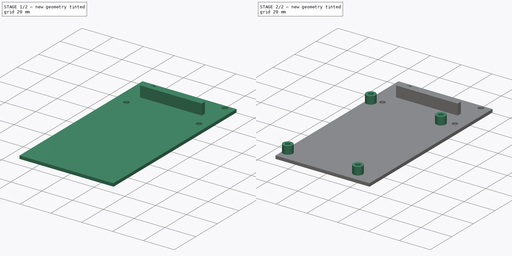
[diagram: build sequence overview — one tinted view per stage of 2, left to right]
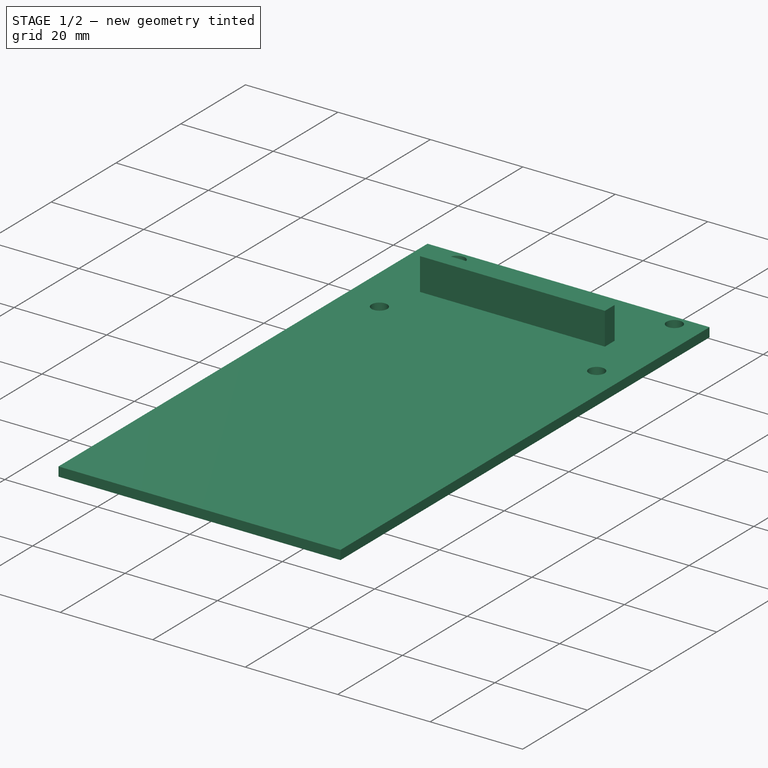
[diagram: stage 1 of 2 — iso view after this stage's code; geometry added in this stage tinted green]
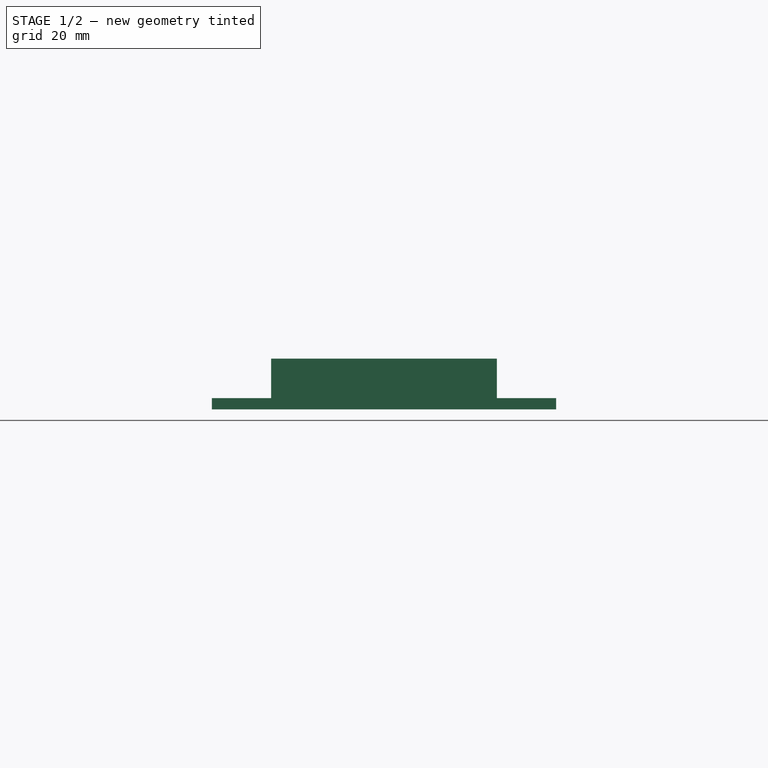
[diagram: stage 1 of 2 — front view after this stage's code; geometry added in this stage tinted green]
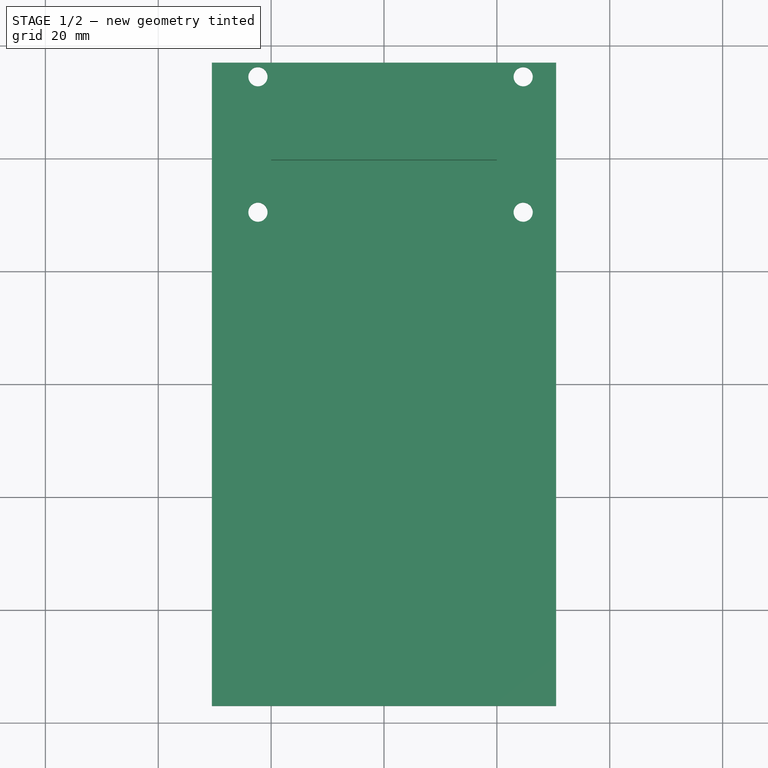
[diagram: stage 1 of 2 — top view after this stage's code; geometry added in this stage tinted green]
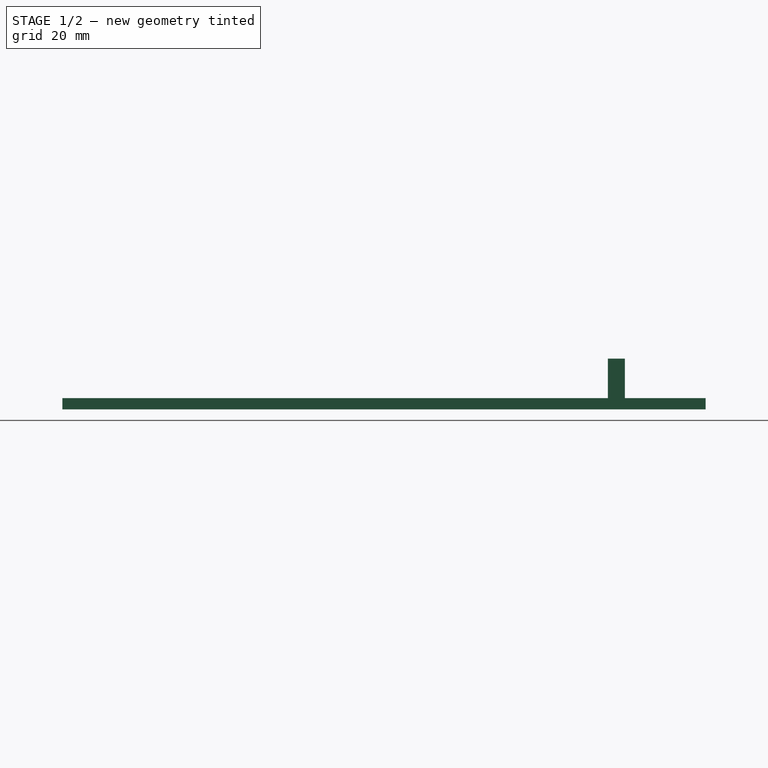
[diagram: stage 1 of 2 — right view after this stage's code; geometry added in this stage tinted green]
FCSTD DOCUMENT  (FreeCAD 0.18R16131 (Git))
Label: lid
License: All rights reserved
LicenseURL: http://en.wikipedia.org/wiki/All_rights_reserved
objects: Sketcher::SketchObject×3, PartDesign::Pad×2, Part::Extrusion×1, PartDesign::Body×1
note: 9 computed .brp shape members not serialized (recipe doc carries the construction recipe); baked Part::Feature solids carry a one-line shape summary decoded from their .brp

FEATURE [Sketcher::SketchObject] Sketch
  MapMode = 5
  Support = -> [XY_Plane]
  sketch-geometry (40):
    g0: LineSegment StartX=-30.5 StartY=57 StartZ=0 EndX=30.5 EndY=57 EndZ=0
    g1: LineSegment StartX=30.5 StartY=57 StartZ=0 EndX=30.5 EndY=-57 EndZ=0
    g2: LineSegment StartX=30.5 StartY=-57 StartZ=0 EndX=-30.5 EndY=-57 EndZ=0
    g3: LineSegment StartX=-30.5 StartY=-57 StartZ=0 EndX=-30.5 EndY=57 EndZ=0
    g4: LineSegment [constr] StartX=-30.5 StartY=30 StartZ=0 EndX=21.2 EndY=30 EndZ=0
    g5: LineSegment [constr] StartX=21.2 StartY=30 StartZ=0 EndX=21.2 EndY=-57 EndZ=0
    g6: LineSegment [constr] StartX=21.2 StartY=-57 StartZ=0 EndX=-30.5 EndY=-57 EndZ=0
    g7: LineSegment [constr] StartX=-30.5 StartY=-57 StartZ=0 EndX=-30.5 EndY=30 EndZ=0
    g8: LineSegment [constr] StartX=-24.8404 StartY=57 StartZ=0 EndX=27.1596 EndY=57 EndZ=0
    g9: LineSegment [constr] StartX=27.1596 StartY=57 StartZ=0 EndX=27.1596 EndY=28 EndZ=0
    g10: LineSegment [constr] StartX=27.1596 StartY=28 StartZ=0 EndX=-24.8404 EndY=28 EndZ=0
    g11: LineSegment [constr] StartX=-24.8404 StartY=28 StartZ=0 EndX=-24.8404 EndY=57 EndZ=0
    g12: Circle [constr] CenterX=18.1 CenterY=26.9 CenterZ=0 NormalX=0 NormalY=0 NormalZ=1 AngleXU=0 Radius=1.6
    g13: LineSegment [constr] StartX=18.1 StartY=30 StartZ=0 EndX=18.1 EndY=26.9 EndZ=0
    g14: LineSegment [constr] StartX=18.1 StartY=26.9 StartZ=0 EndX=21.2 EndY=26.9 EndZ=0
    g15: Circle [constr] CenterX=-27.4 CenterY=26.9 CenterZ=0 NormalX=0 NormalY=0 NormalZ=1 AngleXU=0 Radius=1.6
    g16: LineSegment [constr] StartX=-27.4 StartY=26.9 StartZ=0 EndX=-27.4 EndY=30 EndZ=0
    g17: LineSegment [constr] StartX=-27.4 StartY=26.9 StartZ=0 EndX=-30.5 EndY=26.9 EndZ=0
    g18: LineSegment [constr] StartX=-27.4 StartY=-57 StartZ=0 EndX=-27.4 EndY=-50 EndZ=0
    g19: LineSegment [constr] StartX=-30.5 StartY=-50 StartZ=0 EndX=-27.4 EndY=-50 EndZ=0
    g20: LineSegment [constr] StartX=18.1 StartY=-57 StartZ=0 EndX=18.1 EndY=-50 EndZ=0
    g21: LineSegment [constr] StartX=18.1 StartY=-50 StartZ=0 EndX=21.2 EndY=-50 EndZ=0
    g22: Circle [constr] CenterX=-27.4 CenterY=-50 CenterZ=0 NormalX=0 NormalY=0 NormalZ=1 AngleXU=0 Radius=1.6
    g23: Circle [constr] CenterX=18.1 CenterY=-50 CenterZ=0 NormalX=0 NormalY=0 NormalZ=1 AngleXU=0 Radius=1.6
    g24: LineSegment [constr] StartX=27.1596 StartY=54.5 StartZ=0 EndX=24.6596 EndY=54.5 EndZ=0
    g25: LineSegment [constr] StartX=24.6596 StartY=54.5 StartZ=0 EndX=24.6596 EndY=57 EndZ=0
    g26: Circle CenterX=24.6596 CenterY=54.5 CenterZ=0 NormalX=0 NormalY=0 NormalZ=1 AngleXU=0 Radius=1.7
    g27: LineSegment [constr] StartX=-22.3404 StartY=57 StartZ=0 EndX=-22.3404 EndY=54.5 EndZ=0
    g28: LineSegment [constr] StartX=-22.3404 StartY=54.5 StartZ=0 EndX=-24.8404 EndY=54.5 EndZ=0
    g29: Circle CenterX=-22.3404 CenterY=54.5 CenterZ=0 NormalX=0 NormalY=0 NormalZ=1 AngleXU=0 Radius=1.7
    g30: LineSegment [constr] StartX=24.6596 StartY=28 StartZ=0 EndX=24.6596 EndY=30.5 EndZ=0
    g31: LineSegment [constr] StartX=24.6596 StartY=30.5 StartZ=0 EndX=27.1596 EndY=30.5 EndZ=0
    g32: Circle CenterX=24.6596 CenterY=30.5 CenterZ=0 NormalX=0 NormalY=0 NormalZ=1 AngleXU=0 Radius=1.7
    g33: LineSegment [constr] StartX=-24.8404 StartY=30.5 StartZ=0 EndX=-22.3404 EndY=30.5 EndZ=0
    g34: LineSegment [constr] StartX=-22.3404 StartY=30.5 StartZ=0 EndX=-22.3404 EndY=28 EndZ=0
    g35: Circle CenterX=-22.3404 CenterY=30.5 CenterZ=0 NormalX=0 NormalY=0 NormalZ=1 AngleXU=0 Radius=1.7
    g36: Circle [constr] CenterX=18.1 CenterY=26.9 CenterZ=0 NormalX=0 NormalY=0 NormalZ=1 AngleXU=0 Radius=3.1
    g37: Circle [constr] CenterX=-27.4 CenterY=26.9 CenterZ=0 NormalX=0 NormalY=0 NormalZ=1 AngleXU=0 Radius=3.1
    g38: Circle [constr] CenterX=18.1 CenterY=-50 CenterZ=0 NormalX=0 NormalY=0 NormalZ=1 AngleXU=0 Radius=3.1
    g39: Circle [constr] CenterX=-27.4 CenterY=-50 CenterZ=0 NormalX=0 NormalY=0 NormalZ=1 AngleXU=0 Radius=3.1
  constraints (113):
    c: Coincident(g0,g1)
    c: Coincident(g1,g2)
    c: Coincident(g2,g3)
    c: Coincident(g3,g0)
    c: Horizontal(g2)
    c: Vertical(g3)
    c: Symmetric(g0,g0,g-2)
    c: Symmetric(g0,g1,g-1)
    c: DistanceX(g0,g0) = 61
    c: DistanceY(g1,g1) = 114
    c: Coincident(g4,g5)
    c: Coincident(g5,g6)
    c: Coincident(g6,g7)
    c: Coincident(g7,g4)
    c: Horizontal(g4)
    c: Horizontal(g6)
    c: Vertical(g5)
    c: Vertical(g7)
    c: DistanceX(g4,g4) = 51.7
    c: DistanceY(g5,g5) = 87
    c: Coincident(g8,g9)
    c: Coincident(g9,g10)
    c: Coincident(g10,g11)
    c: Coincident(g11,g8)
    c: Horizontal(g8)
    c: Horizontal(g10)
    c: Vertical(g9)
    c: Vertical(g11)
    c: Distance(g8) = 52
    c: Distance(g11) = 29
    c: PointOnObject(g5,g2)
    c: PointOnObject(g8,g0)
    c: PointOnObject(g4,g3)
    c: Radius(g12) = 1.6
    c: PointOnObject(g13,g4)
    c: Coincident(g13,g12)
    c: Vertical(g13)
    c: Coincident(g14,g12)
    c: PointOnObject(g14,g5)
    c: Horizontal(g14)
    c: Equal(g14,g13)
    c: DistanceX(g14,g14) = 3.1
    c: Coincident(g16,g15)
    c: PointOnObject(g16,g4)
    c: Vertical(g16)
    c: Coincident(g17,g15)
    c: PointOnObject(g17,g3)
    c: Horizontal(g17)
    c: Radius(g15) = 1.6
    c: Equal(g16,g17)
    c: Distance(g16) = 3.1
    c: PointOnObject(g18,g2)
    c: Vertical(g18)
    c: Coincident(g19,g18)
    c: Horizontal(g19)
    c: PointOnObject(g19,g3)
    c: PointOnObject(g20,g2)
    c: Vertical(g20)
    c: Coincident(g21,g20)
    c: PointOnObject(g21,g5)
    c: Horizontal(g21)
    c: DistanceY(g20,g20) = 7
    c: DistanceX(g21,g21) = 3.1
    c: Equal(g18,g20)
    c: Equal(g19,g21)
    c: Coincident(g22,g18)
    c: Coincident(g23,g20)
    c: Equal(g22,g23)
    c: Radius(g22) = 1.6
    c: PointOnObject(g24,g9)
    c: Horizontal(g24)
    c: Coincident(g25,g24)
    c: PointOnObject(g25,g0)
    c: Vertical(g25)
    c: Distance(g24) = 2.5
    c: Distance(g25) = 2.5
    c: Coincident(g26,g24)
    c: Radius(g26) = 1.7
    c: PointOnObject(g27,g0)
    c: Vertical(g27)
    c: Coincident(g28,g27)
    c: PointOnObject(g28,g11)
    c: Horizontal(g28)
    c: Equal(g27,g28)
    c: DistanceY(g27,g27) = 2.5
    c: Coincident(g29,g27)
    c: Radius(g29) = 1.7
    c: PointOnObject(g30,g10)
    c: Vertical(g30)
    c: Coincident(g31,g30)
    c: PointOnObject(g31,g9)
    c: Horizontal(g31)
    c: Equal(g31,g30)
    c: DistanceY(g30,g30) = 2.5
    c: Coincident(g32,g30)
    c: Radius(g32) = 1.7
    c: PointOnObject(g33,g11)
    c: Horizontal(g33)
    c: PointOnObject(g34,g10)
    c: Vertical(g34)
    c: Coincident(g34,g33)
    c: Equal(g33,g34)
    c: DistanceX(g33,g33) = 2.5
    c: Coincident(g35,g33)
    c: Radius(g35) = 1.7
    c: Coincident(g36,g12)
    c: PointOnObject(g14,g36)
    c: Coincident(g37,g15)
    c: PointOnObject(g16,g37)
    c: Coincident(g38,g23)
    c: PointOnObject(g21,g38)
    c: Coincident(g39,g22)
    c: PointOnObject(g19,g39)
FEATURE [PartDesign::Pad] Pad
  Length = 2
  Length2 = 100
  Profile = -> Sketch
  Refine = true
  Type = 0
FEATURE [PartDesign::Pad] Pad001
  BaseFeature = -> Pad
  Length = 7
  Length2 = 2
  Profile = -> Sketch003
  Refine = true
  Type = 4
FEATURE [PartDesign::Body] Body
  Group = -> [Sketch,Pad,Sketch003,Pad001]
  Origin = -> Origin
  Tip = -> Pad001
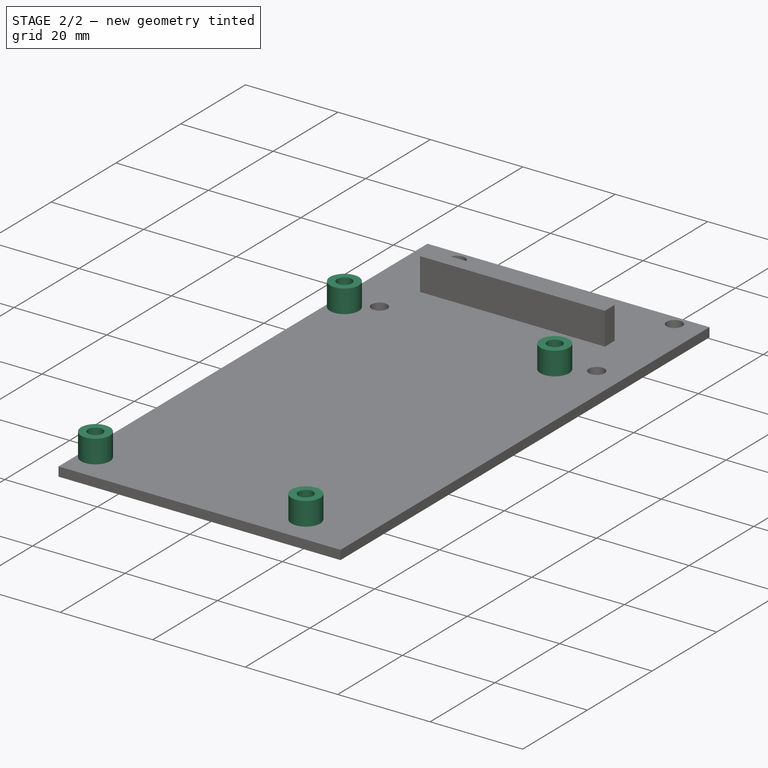
[diagram: stage 2 of 2 — iso view after this stage's code; geometry added in this stage tinted green]
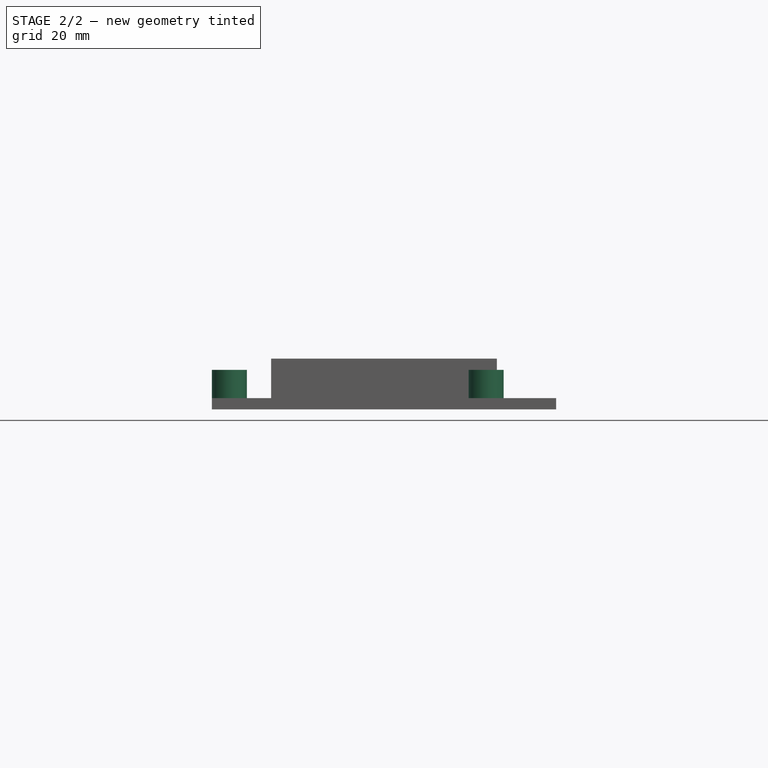
[diagram: stage 2 of 2 — front view after this stage's code; geometry added in this stage tinted green]
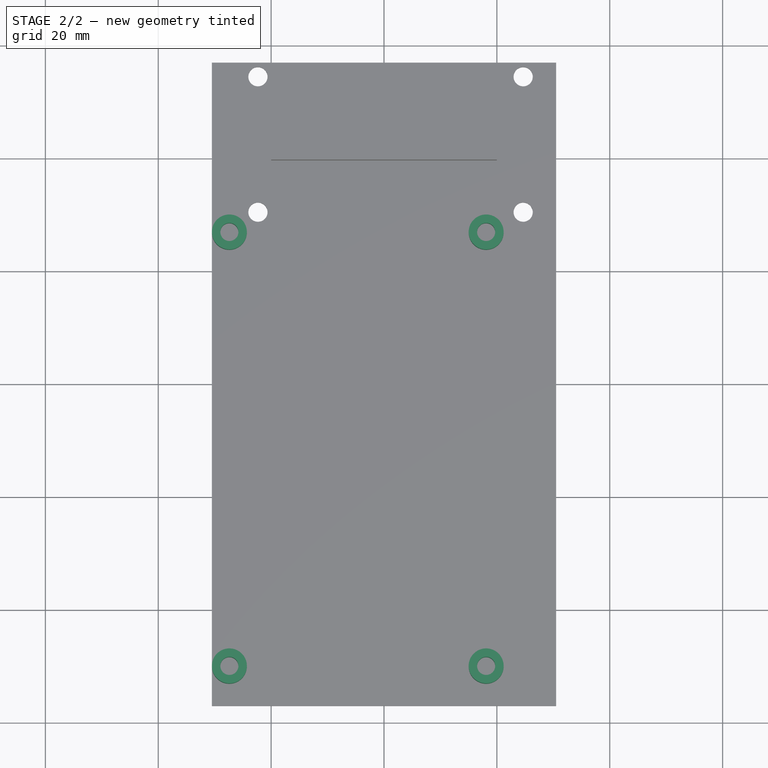
[diagram: stage 2 of 2 — top view after this stage's code; geometry added in this stage tinted green]
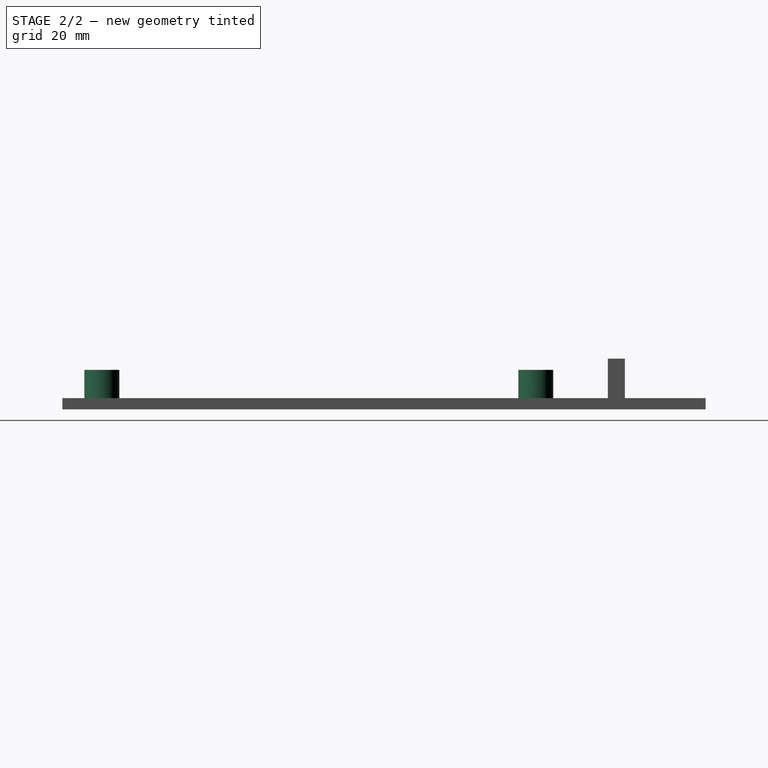
[diagram: stage 2 of 2 — right view after this stage's code; geometry added in this stage tinted green]
FEATURE [Sketcher::SketchObject] Sketch002
  MapMode = 5
  Support = -> [XY_Plane]
  sketch-geometry (40):
    g0: LineSegment [constr] StartX=-30.5 StartY=57 StartZ=0 EndX=30.5 EndY=57 EndZ=0
    g1: LineSegment [constr] StartX=30.5 StartY=57 StartZ=0 EndX=30.5 EndY=-57 EndZ=0
    g2: LineSegment [constr] StartX=30.5 StartY=-57 StartZ=0 EndX=-30.5 EndY=-57 EndZ=0
    g3: LineSegment [constr] StartX=-30.5 StartY=-57 StartZ=0 EndX=-30.5 EndY=57 EndZ=0
    g4: LineSegment [constr] StartX=-30.5 StartY=30 StartZ=0 EndX=21.2 EndY=30 EndZ=0
    g5: LineSegment [constr] StartX=21.2 StartY=30 StartZ=0 EndX=21.2 EndY=-57 EndZ=0
    g6: LineSegment [constr] StartX=21.2 StartY=-57 StartZ=0 EndX=-30.5 EndY=-57 EndZ=0
    g7: LineSegment [constr] StartX=-30.5 StartY=-57 StartZ=0 EndX=-30.5 EndY=30 EndZ=0
    g8: LineSegment [constr] StartX=-24.8404 StartY=57 StartZ=0 EndX=27.1596 EndY=57 EndZ=0
    g9: LineSegment [constr] StartX=27.1596 StartY=57 StartZ=0 EndX=27.1596 EndY=28 EndZ=0
    g10: LineSegment [constr] StartX=27.1596 StartY=28 StartZ=0 EndX=-24.8404 EndY=28 EndZ=0
    g11: LineSegment [constr] StartX=-24.8404 StartY=28 StartZ=0 EndX=-24.8404 EndY=57 EndZ=0
    g12: Circle CenterX=18.1 CenterY=26.9 CenterZ=0 NormalX=0 NormalY=0 NormalZ=1 AngleXU=0 Radius=1.6
    g13: LineSegment [constr] StartX=18.1 StartY=30 StartZ=0 EndX=18.1 EndY=26.9 EndZ=0
    g14: LineSegment [constr] StartX=18.1 StartY=26.9 StartZ=0 EndX=21.2 EndY=26.9 EndZ=0
    g15: Circle CenterX=-27.4 CenterY=26.9 CenterZ=0 NormalX=0 NormalY=0 NormalZ=1 AngleXU=0 Radius=1.6
    g16: LineSegment [constr] StartX=-27.4 StartY=26.9 StartZ=0 EndX=-27.4 EndY=30 EndZ=0
    g17: LineSegment [constr] StartX=-27.4 StartY=26.9 StartZ=0 EndX=-30.5 EndY=26.9 EndZ=0
    g18: LineSegment [constr] StartX=-27.4 StartY=-57 StartZ=0 EndX=-27.4 EndY=-50 EndZ=0
    g19: LineSegment [constr] StartX=-30.5 StartY=-50 StartZ=0 EndX=-27.4 EndY=-50 EndZ=0
    g20: LineSegment [constr] StartX=18.1 StartY=-57 StartZ=0 EndX=18.1 EndY=-50 EndZ=0
    g21: LineSegment [constr] StartX=18.1 StartY=-50 StartZ=0 EndX=21.2 EndY=-50 EndZ=0
    g22: Circle CenterX=-27.4 CenterY=-50 CenterZ=0 NormalX=0 NormalY=0 NormalZ=1 AngleXU=0 Radius=1.6
    g23: Circle CenterX=18.1 CenterY=-50 CenterZ=0 NormalX=0 NormalY=0 NormalZ=1 AngleXU=0 Radius=1.6
    g24: LineSegment [constr] StartX=27.1596 StartY=54.5 StartZ=0 EndX=24.6596 EndY=54.5 EndZ=0
    g25: LineSegment [constr] StartX=24.6596 StartY=54.5 StartZ=0 EndX=24.6596 EndY=57 EndZ=0
    g26: Circle [constr] CenterX=24.6596 CenterY=54.5 CenterZ=0 NormalX=0 NormalY=0 NormalZ=1 AngleXU=0 Radius=1.7
    g27: LineSegment [constr] StartX=-22.3404 StartY=57 StartZ=0 EndX=-22.3404 EndY=54.5 EndZ=0
    g28: LineSegment [constr] StartX=-22.3404 StartY=54.5 StartZ=0 EndX=-24.8404 EndY=54.5 EndZ=0
    g29: Circle [constr] CenterX=-22.3404 CenterY=54.5 CenterZ=0 NormalX=0 NormalY=0 NormalZ=1 AngleXU=0 Radius=1.7
    g30: LineSegment [constr] StartX=24.6596 StartY=28 StartZ=0 EndX=24.6596 EndY=30.5 EndZ=0
    g31: LineSegment [constr] StartX=24.6596 StartY=30.5 StartZ=0 EndX=27.1596 EndY=30.5 EndZ=0
    g32: Circle [constr] CenterX=24.6596 CenterY=30.5 CenterZ=0 NormalX=0 NormalY=0 NormalZ=1 AngleXU=0 Radius=1.7
    g33: LineSegment [constr] StartX=-24.8404 StartY=30.5 StartZ=0 EndX=-22.3404 EndY=30.5 EndZ=0
    g34: LineSegment [constr] StartX=-22.3404 StartY=30.5 StartZ=0 EndX=-22.3404 EndY=28 EndZ=0
    g35: Circle [constr] CenterX=-22.3404 CenterY=30.5 CenterZ=0 NormalX=0 NormalY=0 NormalZ=1 AngleXU=0 Radius=1.7
    g36: Circle CenterX=18.1 CenterY=26.9 CenterZ=0 NormalX=0 NormalY=0 NormalZ=1 AngleXU=0 Radius=3.1
    g37: Circle CenterX=-27.4 CenterY=26.9 CenterZ=0 NormalX=0 NormalY=0 NormalZ=1 AngleXU=0 Radius=3.1
    g38: Circle CenterX=18.1 CenterY=-50 CenterZ=0 NormalX=0 NormalY=0 NormalZ=1 AngleXU=0 Radius=3.1
    g39: Circle CenterX=-27.4 CenterY=-50 CenterZ=0 NormalX=0 NormalY=0 NormalZ=1 AngleXU=0 Radius=3.1
  constraints (113):
    c: Coincident(g0,g1)
    c: Coincident(g1,g2)
    c: Coincident(g2,g3)
    c: Coincident(g3,g0)
    c: Horizontal(g2)
    c: Vertical(g3)
    c: Symmetric(g0,g0,g-2)
    c: Symmetric(g0,g1,g-1)
    c: DistanceX(g0,g0) = 61
    c: DistanceY(g1,g1) = 114
    c: Coincident(g4,g5)
    c: Coincident(g5,g6)
    c: Coincident(g6,g7)
    c: Coincident(g7,g4)
    c: Horizontal(g4)
    c: Horizontal(g6)
    c: Vertical(g5)
    c: Vertical(g7)
    c: DistanceX(g4,g4) = 51.7
    c: DistanceY(g5,g5) = 87
    c: Coincident(g8,g9)
    c: Coincident(g9,g10)
    c: Coincident(g10,g11)
    c: Coincident(g11,g8)
    c: Horizontal(g8)
    c: Horizontal(g10)
    c: Vertical(g9)
    c: Vertical(g11)
    c: Distance(g8) = 52
    c: Distance(g11) = 29
    c: PointOnObject(g5,g2)
    c: PointOnObject(g8,g0)
    c: PointOnObject(g4,g3)
    c: Radius(g12) = 1.6
    c: PointOnObject(g13,g4)
    c: Coincident(g13,g12)
    c: Vertical(g13)
    c: Coincident(g14,g12)
    c: PointOnObject(g14,g5)
    c: Horizontal(g14)
    c: Equal(g14,g13)
    c: DistanceX(g14,g14) = 3.1
    c: Coincident(g16,g15)
    c: PointOnObject(g16,g4)
    c: Vertical(g16)
    c: Coincident(g17,g15)
    c: PointOnObject(g17,g3)
    c: Horizontal(g17)
    c: Radius(g15) = 1.6
    c: Equal(g16,g17)
    c: Distance(g16) = 3.1
    c: PointOnObject(g18,g2)
    c: Vertical(g18)
    c: Coincident(g19,g18)
    c: Horizontal(g19)
    c: PointOnObject(g19,g3)
    c: PointOnObject(g20,g2)
    c: Vertical(g20)
    c: Coincident(g21,g20)
    c: PointOnObject(g21,g5)
    c: Horizontal(g21)
    c: DistanceY(g20,g20) = 7
    c: DistanceX(g21,g21) = 3.1
    c: Equal(g18,g20)
    c: Equal(g19,g21)
    c: Coincident(g22,g18)
    c: Coincident(g23,g20)
    c: Equal(g22,g23)
    c: Radius(g22) = 1.6
    c: PointOnObject(g24,g9)
    c: Horizontal(g24)
    c: Coincident(g25,g24)
    c: PointOnObject(g25,g0)
    c: Vertical(g25)
    c: Distance(g24) = 2.5
    c: Distance(g25) = 2.5
    c: Coincident(g26,g24)
    c: Radius(g26) = 1.7
    c: PointOnObject(g27,g0)
    c: Vertical(g27)
    c: Coincident(g28,g27)
    c: PointOnObject(g28,g11)
    c: Horizontal(g28)
    c: Equal(g27,g28)
    c: DistanceY(g27,g27) = 2.5
    c: Coincident(g29,g27)
    c: Radius(g29) = 1.7
    c: PointOnObject(g30,g10)
    c: Vertical(g30)
    c: Coincident(g31,g30)
    c: PointOnObject(g31,g9)
    c: Horizontal(g31)
    c: Equal(g31,g30)
    c: DistanceY(g30,g30) = 2.5
    c: Coincident(g32,g30)
    c: Radius(g32) = 1.7
    c: PointOnObject(g33,g11)
    c: Horizontal(g33)
    c: PointOnObject(g34,g10)
    c: Vertical(g34)
    c: Coincident(g34,g33)
    c: Equal(g33,g34)
    c: DistanceX(g33,g33) = 2.5
    c: Coincident(g35,g33)
    c: Radius(g35) = 1.7
    c: Coincident(g36,g12)
    c: PointOnObject(g14,g36)
    c: Coincident(g37,g15)
    c: PointOnObject(g16,g37)
    c: Coincident(g38,g23)
    c: PointOnObject(g21,g38)
    c: Coincident(g39,g22)
    c: PointOnObject(g19,g39)
FEATURE [Sketcher::SketchObject] Sketch003
  MapMode = 5
  Placement = pos=(0,0,2) rot=(0,0,1;0rad)
  Support = -> [Pad]
  sketch-geometry (4):
    g0: LineSegment StartX=-20 StartY=42.6805 StartZ=0 EndX=20 EndY=42.6805 EndZ=0
    g1: LineSegment StartX=20 StartY=42.6805 StartZ=0 EndX=20 EndY=39.6805 EndZ=0
    g2: LineSegment StartX=20 StartY=39.6805 StartZ=0 EndX=-20 EndY=39.6805 EndZ=0
    g3: LineSegment StartX=-20 StartY=39.6805 StartZ=0 EndX=-20 EndY=42.6805 EndZ=0
  constraints (10):
    c: Coincident(g0,g1)
    c: Coincident(g1,g2)
    c: Coincident(g2,g3)
    c: Coincident(g3,g0)
    c: Horizontal(g2)
    c: Vertical(g1)
    c: Vertical(g3)
    c: Symmetric(g0,g0,g-2)
    c: DistanceY(g1,g1) = 3
    c: DistanceX(g0,g0) = 40
FEATURE [Part::Extrusion] Extrude
  Base = -> Sketch002
  Dir = (0,0,1)
  DirMode = 2
  FaceMakerClass = Part::FaceMakerBullseye
  LengthFwd = 7
  LengthRev = 0
  Solid = true
  Symmetric = false
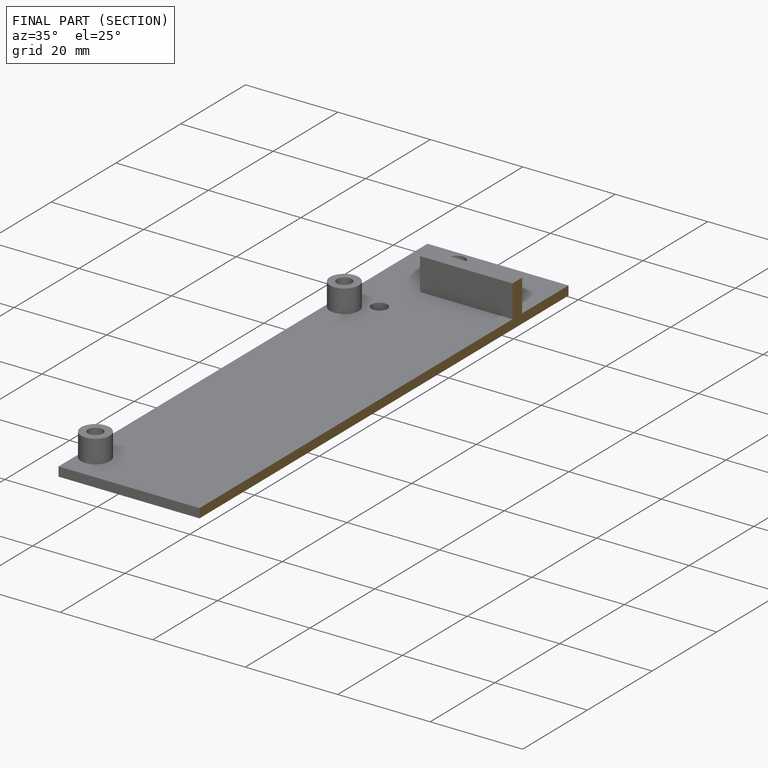
[diagram: finished part — half-section view (interior)]
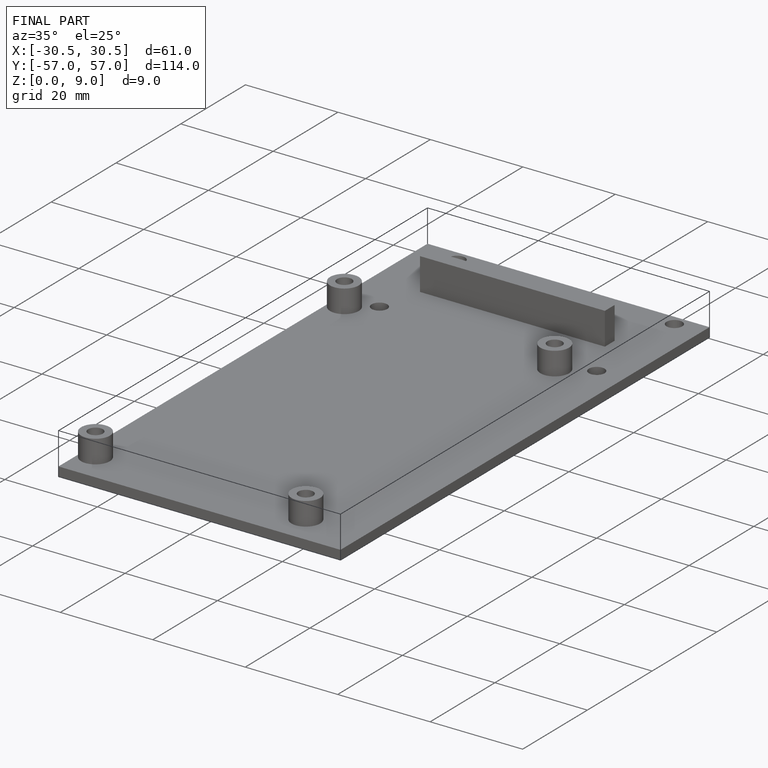
[diagram: finished part — iso view with bounding-box wireframe]
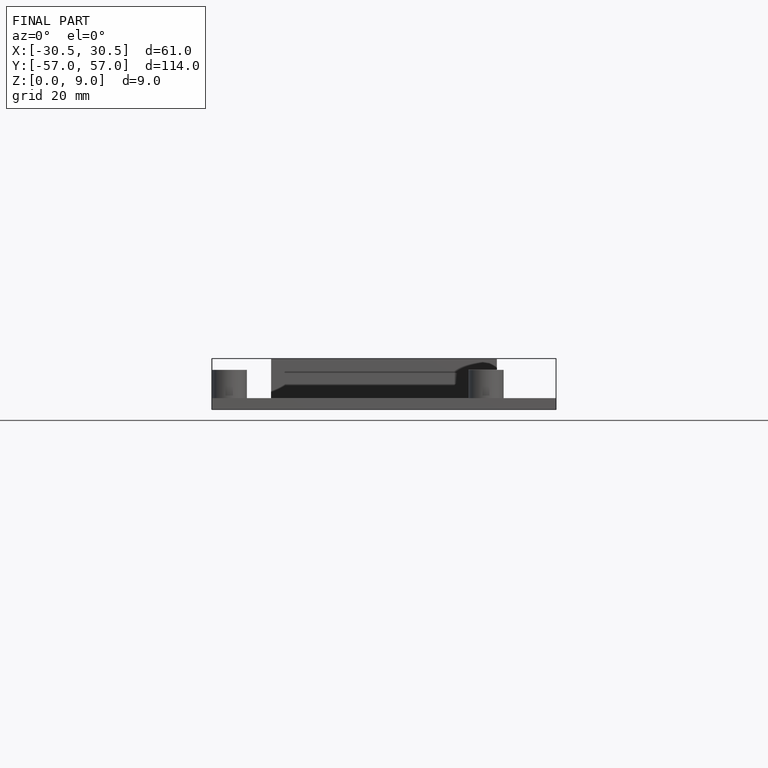
[diagram: finished part — front view with bounding-box wireframe]
